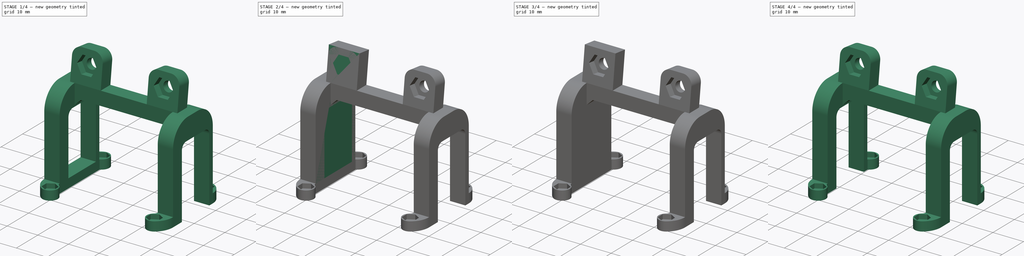
[diagram: build sequence overview — one tinted view per stage of 4, left to right]
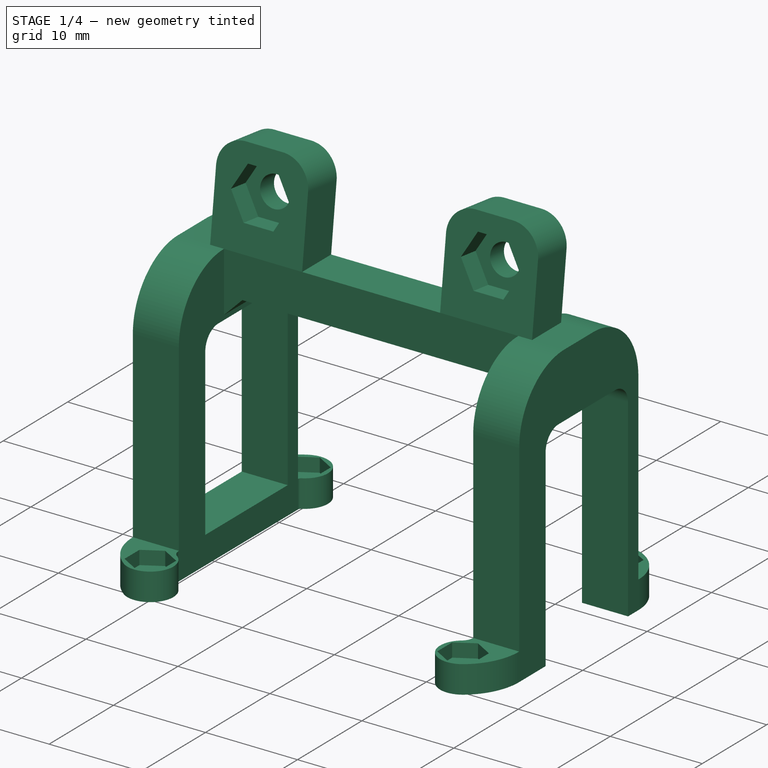
[diagram: stage 1 of 4 — iso view after this stage's code; geometry added in this stage tinted green]
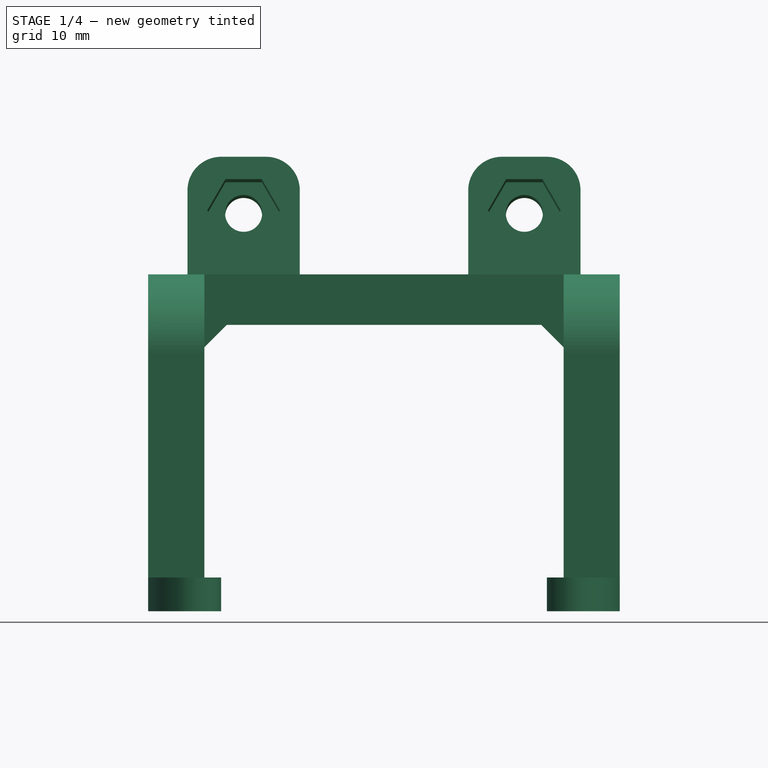
[diagram: stage 1 of 4 — front view after this stage's code; geometry added in this stage tinted green]
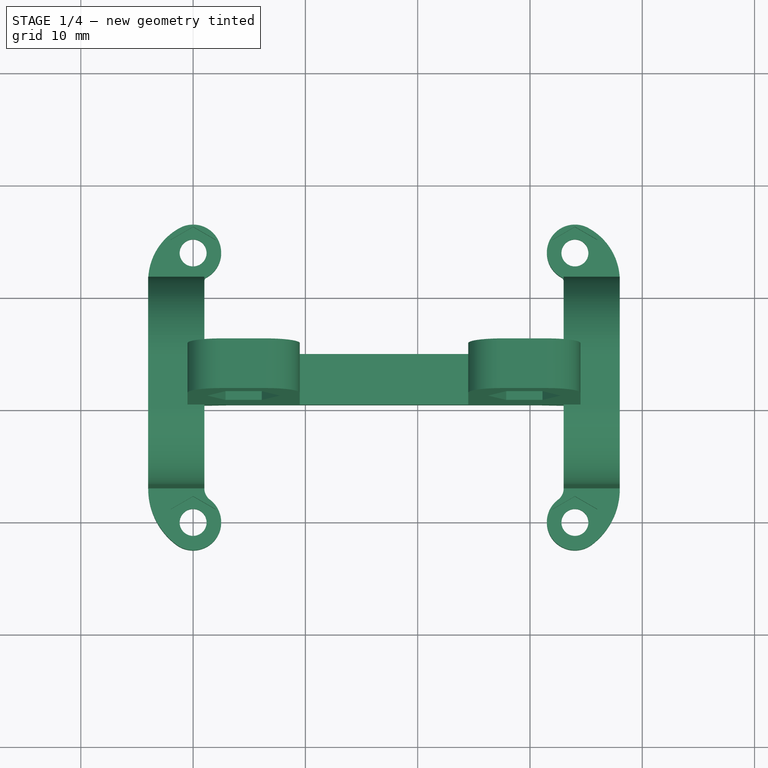
[diagram: stage 1 of 4 — top view after this stage's code; geometry added in this stage tinted green]
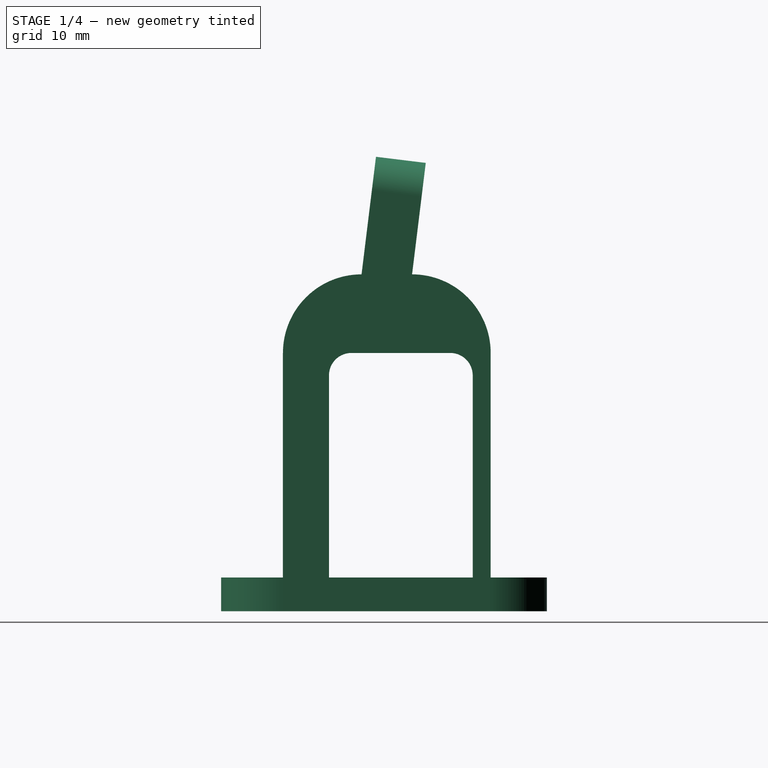
[diagram: stage 1 of 4 — right view after this stage's code; geometry added in this stage tinted green]
FCSTD DOCUMENT  (FreeCAD 0.17R13522 (Git))
Label: Soporte camara APTech
License: All rights reserved
LicenseURL: http://en.wikipedia.org/wiki/All_rights_reserved
objects: Sketcher::SketchObject×8, PartDesign::Pad×4, PartDesign::Pocket×4, PartDesign::Fillet×3, Part::Feature×2, PartDesign::Chamfer×1, Part::Mirroring×1, Part::MultiFuse×1
note: 32 computed .brp shape members not serialized (recipe doc carries the construction recipe); baked Part::Feature solids carry a one-line shape summary decoded from their .brp

FEATURE [Sketcher::SketchObject] Sketch
  MapMode = 5
  sketch-geometry (12):
    g0: Circle CenterX=0 CenterY=0 CenterZ=0 NormalX=0 NormalY=0 NormalZ=1 AngleXU=0 Radius=1.2
    g1: ArcOfCircle CenterX=0 CenterY=24 CenterZ=0 NormalX=0 NormalY=0 NormalZ=1 AngleXU=0 Radius=2.5 StartAngle=5.20235 EndAngle=8.34394
    g2: LineSegment [constr] StartX=0 StartY=24 StartZ=0 EndX=1.17647 EndY=21.7941 EndZ=0
    g3: LineSegment [constr] StartX=0 StartY=24 StartZ=0 EndX=-1.17647 EndY=26.2059 EndZ=0
    g4: ArcOfCircle CenterX=0 CenterY=0 CenterZ=0 NormalX=0 NormalY=0 NormalZ=1 AngleXU=0 Radius=2.5 StartAngle=4.06889 EndAngle=7.21048
    g5: ArcOfCircle CenterX=1.33333 CenterY=21.5 CenterZ=0 NormalX=0 NormalY=0 NormalZ=1 AngleXU=0 Radius=0.333333 StartAngle=2.06075 EndAngle=3.14159
    g6: ArcOfCircle CenterX=1.33333 CenterY=21.5 CenterZ=0 NormalX=0 NormalY=0 NormalZ=1 AngleXU=0 Radius=5.33333 StartAngle=2.06075 EndAngle=3.14159
    g7: ArcOfCircle CenterX=2.24998 CenterY=2.99999 CenterZ=0 NormalX=0 NormalY=0 NormalZ=1 AngleXU=0 Radius=6.24998 StartAngle=3.14159 EndAngle=4.06889
    g8: LineSegment StartX=-4 StartY=3 StartZ=0 EndX=-4 EndY=21.5 EndZ=0
    g9: ArcOfCircle CenterX=2.24998 CenterY=2.99999 CenterZ=0 NormalX=0 NormalY=0 NormalZ=1 AngleXU=0 Radius=1.24998 StartAngle=3.14159 EndAngle=4.06889
    g10: LineSegment StartX=1 StartY=21.5 StartZ=0 EndX=1 EndY=2.99999 EndZ=0
    g11: Circle CenterX=0 CenterY=24 CenterZ=0 NormalX=0 NormalY=0 NormalZ=1 AngleXU=0 Radius=1.2
  constraints (35):
    c: Coincident(g0,g-1)
    c: Radius(g0) = 1.2
    c: Coincident(g2,g1)
    c: Coincident(g3,g1)
    c: Coincident(g4,g-1)
    c: Equal(g1,g4)
    c: Parallel(g3,g2)
    c: Coincident(g5,g1)
    c: Coincident(g6,g1)
    c: Coincident(g7,g4)
    c: Tangent(g7,g4)
    c: Tangent(g5,g1)
    c: Distance(g2) = 2.5
    c: Coincident(g6,g5)
    c: Coincident(g8,g7)
    c: Vertical(g8)
    c: Tangent(g7,g8)
    c: PointOnObject(g1,g-2)
    c: Coincident(g2,g1)
    c: Coincident(g3,g1)
    c: Coincident(g9,g7)
    c: Coincident(g9,g4)
    c: Tangent(g9,g4)
    c: Coincident(g10,g9)
    c: Vertical(g10)
    c: Tangent(g9,g10)
    c: DistanceY(g-1,g1) = 24
    c: Coincident(g11,g1)
    c: Equal(g11,g0)
    c: DistanceX(g-1,g10) = 1
    c: Coincident(g8,g6)
    c: Coincident(g5,g10)
    c: Tangent(g5,g10)
    c: DistanceY(g6,g1) = 2.5
    c: DistanceY(g-1,g7) = 3
FEATURE [PartDesign::Pad] Pad
  Length = 3
  Length2 = 100
  Profile = -> Sketch
  Type = 0
FEATURE [Sketcher::SketchObject] Sketch001
  ExternalGeometry = -> [Pad]
  MapMode = 5
  Placement = pos=(0,0,3) rot=(0,0,1;0rad)
  Support = -> [Pad]
  sketch-geometry (14):
    g0: LineSegment StartX=0 StartY=2.3094 StartZ=0 EndX=-2 EndY=1.1547 EndZ=0
    g1: LineSegment StartX=-2 StartY=1.1547 StartZ=0 EndX=-2 EndY=-1.1547 EndZ=0
    g2: LineSegment StartX=-2 StartY=-1.1547 StartZ=0 EndX=0 EndY=-2.3094 EndZ=0
    g3: LineSegment StartX=0 StartY=-2.3094 StartZ=0 EndX=2 EndY=-1.1547 EndZ=0
    g4: LineSegment StartX=2 StartY=-1.1547 StartZ=0 EndX=2 EndY=1.1547 EndZ=0
    g5: LineSegment StartX=2 StartY=1.1547 StartZ=0 EndX=0 EndY=2.3094 EndZ=0
    g6: Circle [constr] CenterX=0 CenterY=0 CenterZ=0 NormalX=0 NormalY=0 NormalZ=1 AngleXU=0 Radius=2.3094
    g7: LineSegment StartX=0 StartY=21.6906 StartZ=0 EndX=2 EndY=22.8453 EndZ=0
    g8: LineSegment StartX=2 StartY=22.8453 StartZ=0 EndX=2 EndY=25.1547 EndZ=0
    g9: LineSegment StartX=2 StartY=25.1547 StartZ=0 EndX=1e-12 EndY=26.3094 EndZ=0
    g10: LineSegment StartX=1e-12 StartY=26.3094 StartZ=0 EndX=-2 EndY=25.1547 EndZ=0
    g11: LineSegment StartX=-2 StartY=25.1547 StartZ=0 EndX=-2 EndY=22.8453 EndZ=0
    g12: LineSegment StartX=-2 StartY=22.8453 StartZ=0 EndX=0 EndY=21.6906 EndZ=0
    g13: Circle [constr] CenterX=0 CenterY=24 CenterZ=0 NormalX=0 NormalY=0 NormalZ=1 AngleXU=0 Radius=2.3094
  constraints (32):
    c: Coincident(g0,g1)
    c: Coincident(g1,g2)
    c: Coincident(g2,g3)
    c: Coincident(g3,g4)
    c: Coincident(g4,g5)
    c: Coincident(g5,g0)
    c: Equal(g0, g1-g5) x5
    c: PointOnObject(g0,g6)
    c: PointOnObject(g1,g6)
    c: PointOnObject(g2,g6)
    c: PointOnObject(g3,g6)
    c: PointOnObject(g4,g6)
    c: PointOnObject(g5,g6)
    c: Coincident(g6,g-1)
    c: Coincident(g7,g8)
    c: Coincident(g8,g9)
    c: Coincident(g9,g10)
    c: Coincident(g10,g11)
    c: Coincident(g11,g12)
    c: Coincident(g12,g7)
    c: Equal(g7, g8-g12) x5
    c: PointOnObject(g7,g13)
    c: PointOnObject(g8,g13)
    c: PointOnObject(g9,g13)
    c: PointOnObject(g10,g13)
    c: PointOnObject(g11,g13)
    c: PointOnObject(g12,g13)
    c: Coincident(g13,g-3)
    c: PointOnObject(g12,g-2)
    c: PointOnObject(g0,g-2)
    c: Equal(g4,g8)
    c: Distance(g8,g7) = 4
FEATURE [PartDesign::Pocket] Pocket
  Length = 1.5
  Length2 = 100
  Profile = -> Sketch001
  Type = 0
FEATURE [Part::Feature] Fillet002001  label="Semiarco"
  shape: bbox 21 x 29 x 40.47 mm, 59 faces (baked)
FEATURE [Part::Mirroring] Part__Mirroring  label="Semiarco (Mirror #1)"
  Base = (0,0,0)
  Normal = (1,0,0)
  Placement = pos=(34,0,0) rot=(0,0,1;0rad)
  Source = -> Fillet002001
FEATURE [Part::MultiFuse] Fusion
  Shapes = -> [Part__Mirroring,Fillet002001]
FEATURE [Part::Feature] Fusion001  label="Arco"
  shape: bbox 42 x 29 x 40.47 mm, 112 faces (baked)
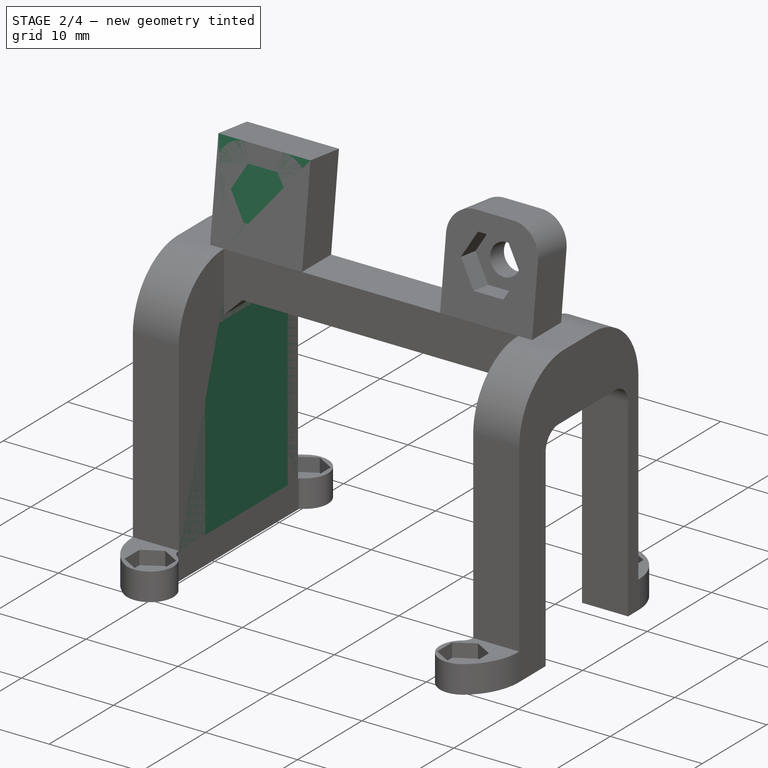
[diagram: stage 2 of 4 — iso view after this stage's code; geometry added in this stage tinted green]
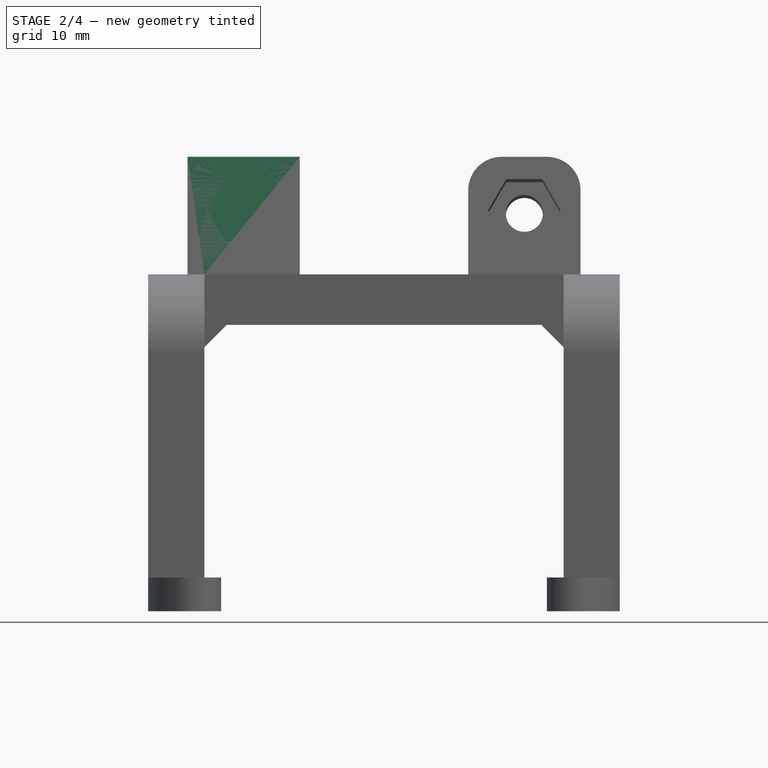
[diagram: stage 2 of 4 — front view after this stage's code; geometry added in this stage tinted green]
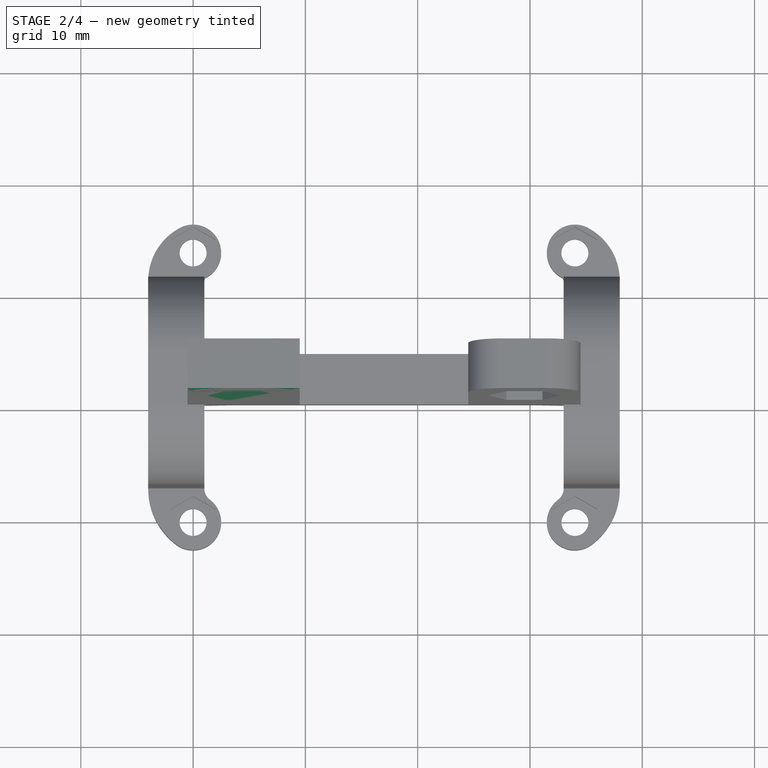
[diagram: stage 2 of 4 — top view after this stage's code; geometry added in this stage tinted green]
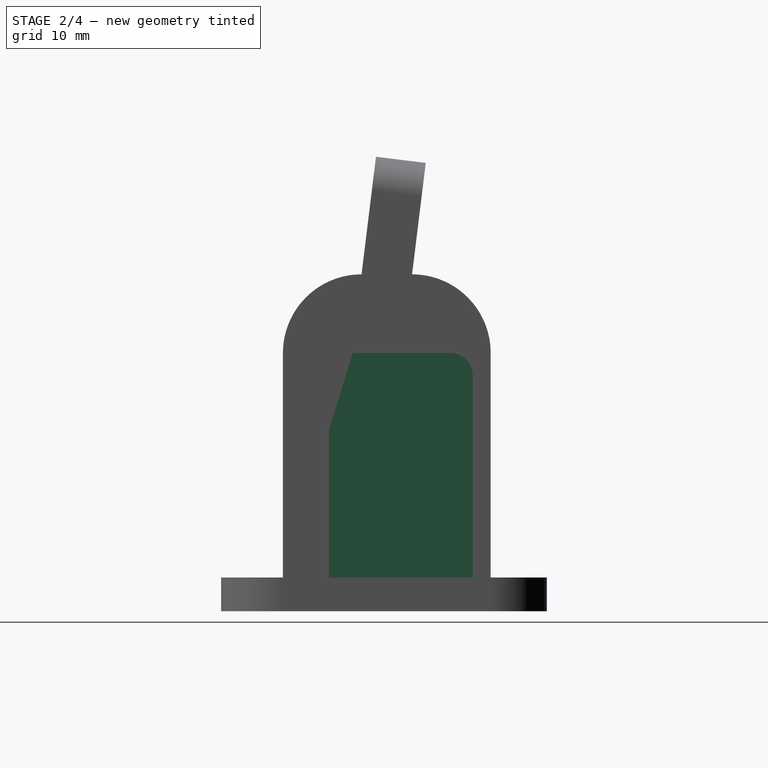
[diagram: stage 2 of 4 — right view after this stage's code; geometry added in this stage tinted green]
FEATURE [Sketcher::SketchObject] Sketch002
  ExternalGeometry = -> [Pocket]
  MapMode = 5
  Placement = pos=(0,0,3) rot=(0,0,1;0rad)
  Support = -> [Pocket]
  sketch-geometry (4):
    g0: LineSegment StartX=-4 StartY=21.5 StartZ=0 EndX=1 EndY=21.5 EndZ=0
    g1: LineSegment StartX=1 StartY=21.5 StartZ=0 EndX=1 EndY=2.99999 EndZ=0
    g2: LineSegment StartX=1 StartY=2.99999 StartZ=0 EndX=-4 EndY=3 EndZ=0
    g3: LineSegment StartX=-4 StartY=3 StartZ=0 EndX=-4 EndY=21.5 EndZ=0
  constraints (9):
    c: Coincident(g0,g-3)
    c: Coincident(g0,g-4)
    c: Coincident(g1,g-6)
    c: Vertical(g1)
    c: Coincident(g2,g1)
    c: Coincident(g2,g-5)
    c: Coincident(g3,g2)
    c: Coincident(g3,g0)
    c: Coincident(g1,g0)
FEATURE [PartDesign::Pad] Pad001
  Length = 27
  Length2 = 100
  Profile = -> Sketch002
  Type = 0
FEATURE [PartDesign::Fillet] Fillet
  Base = -> Pad001 [Edge70,Edge39]
  Radius = 7
FEATURE [Sketcher::SketchObject] Sketch003
  ExternalGeometry = -> [Fillet]
  MapMode = 5
  Placement = pos=(1,0,0) rot=(0.57735,0.57735,0.57735;2.0944rad)
  Support = -> [Fillet]
  sketch-geometry (6):
    g0: LineSegment StartX=9.99999 StartY=30 StartZ=0 EndX=9.99999 EndY=25.5 EndZ=0
    g1: LineSegment StartX=9.99999 StartY=25.5 StartZ=0 EndX=14.5 EndY=25.5 EndZ=0
    g2: LineSegment StartX=14.5 StartY=25.5 StartZ=0 EndX=14.5 EndY=30 EndZ=0
    g3: LineSegment StartX=9.99999 StartY=30 StartZ=0 EndX=11.2855 EndY=40.4698 EndZ=0
    g4: LineSegment StartX=11.2855 StartY=40.4698 StartZ=0 EndX=15.7187 EndY=39.9255 EndZ=0
    g5: LineSegment StartX=15.7187 StartY=39.9255 StartZ=0 EndX=14.5 EndY=30 EndZ=0
  constraints (16):
    c: Coincident(g0,g-4)
    c: Vertical(g0)
    c: Coincident(g1,g0)
    c: Horizontal(g1)
    c: Coincident(g2,g1)
    c: Vertical(g2)
    c: Coincident(g2,g-3)
    c: Equal(g1,g0)
    c: Coincident(g3,g0)
    c: Coincident(g4,g3)
    c: Coincident(g5,g4)
    c: Coincident(g5,g2)
    c: Parallel(g5,g3)
    c: Perpendicular(g3,g4)
    c: Distance(g5) = 10
    c: Angle(g-5,g3) = 1.44862
FEATURE [PartDesign::Pad] Pad002
  Length = 8.5
  Length2 = 1.5
  Profile = -> Sketch003
  Type = 4
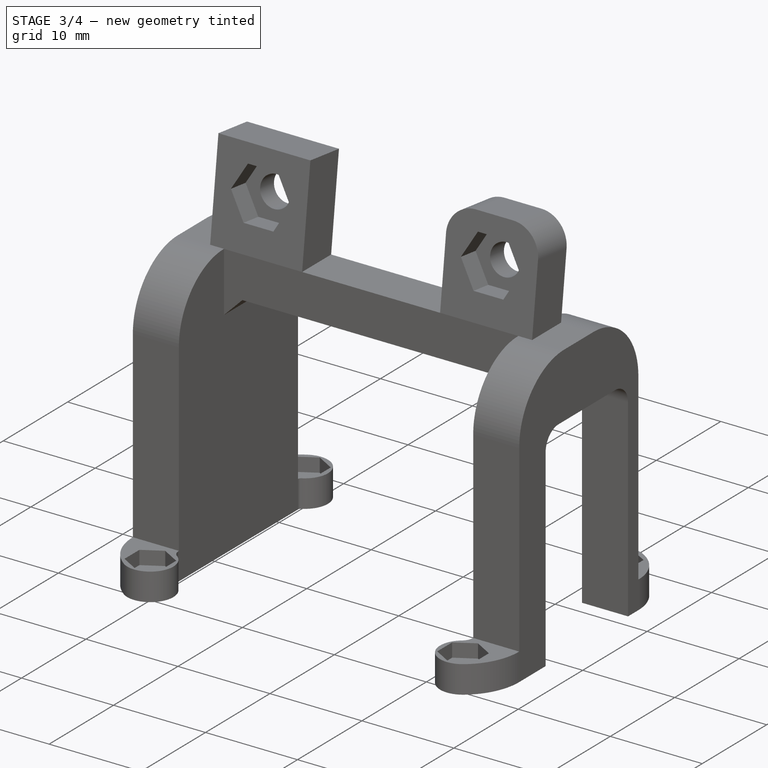
[diagram: stage 3 of 4 — iso view after this stage's code; geometry added in this stage tinted green]
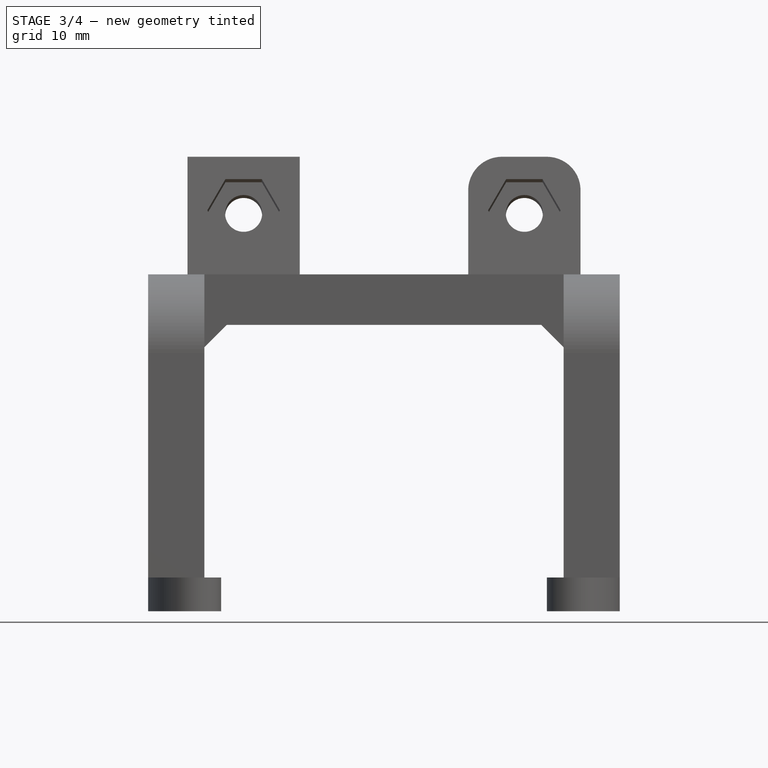
[diagram: stage 3 of 4 — front view after this stage's code; geometry added in this stage tinted green]
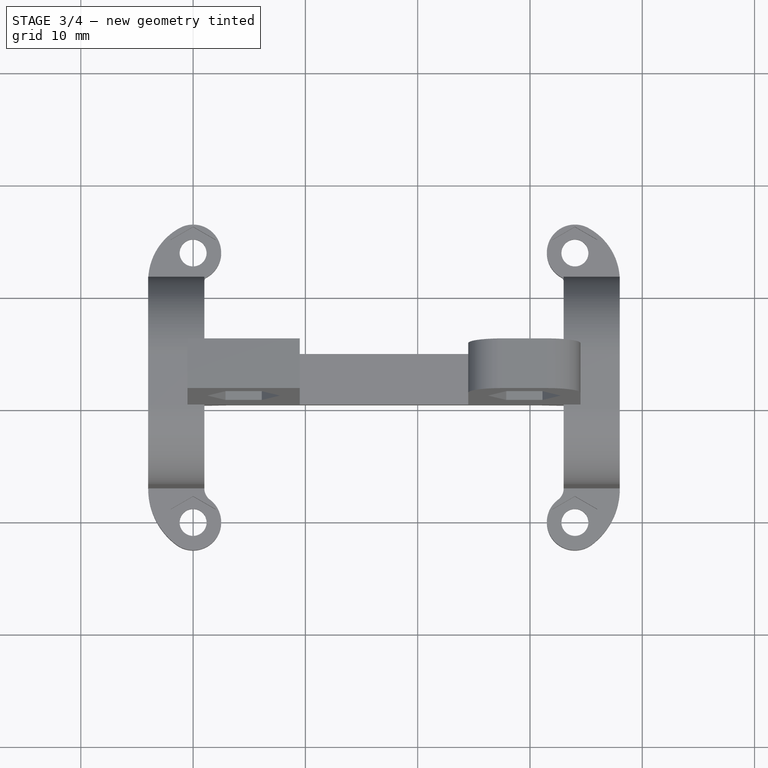
[diagram: stage 3 of 4 — top view after this stage's code; geometry added in this stage tinted green]
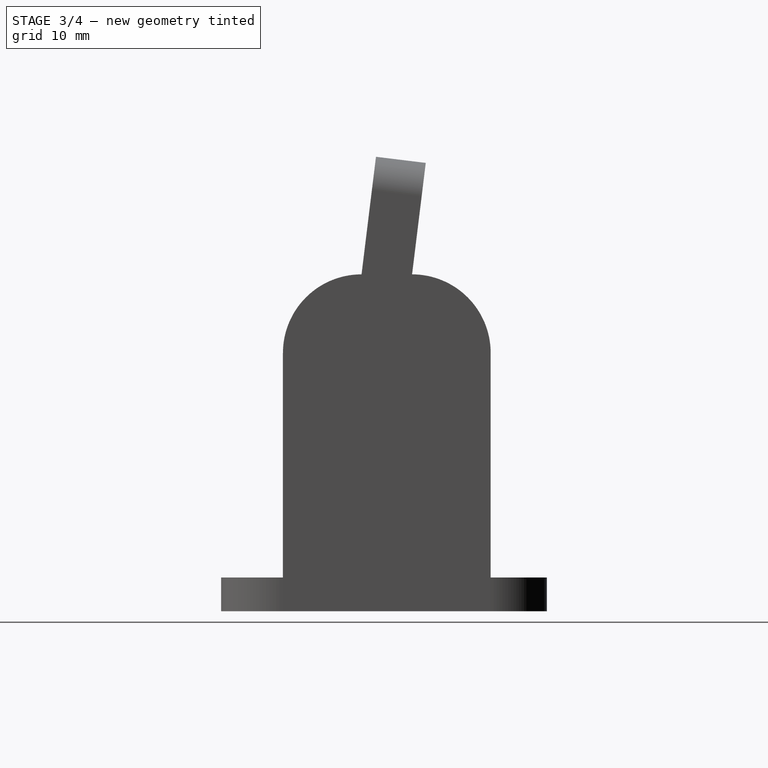
[diagram: stage 3 of 4 — right view after this stage's code; geometry added in this stage tinted green]
FEATURE [Sketcher::SketchObject] Sketch004
  ExternalGeometry = -> [Pad002]
  MapMode = 5
  Placement = pos=(9.5,0,0) rot=(0.57735,0.57735,0.57735;2.0944rad)
  Support = -> [Pad002]
  sketch-geometry (4):
    g0: LineSegment StartX=9.99999 StartY=30 StartZ=0 EndX=14.5 EndY=30 EndZ=0
    g1: LineSegment StartX=14.5 StartY=30 StartZ=0 EndX=14.5 EndY=25.5 EndZ=0
    g2: LineSegment StartX=14.5 StartY=25.5 StartZ=0 EndX=9.99999 EndY=25.5 EndZ=0
    g3: LineSegment StartX=9.99999 StartY=25.5 StartZ=0 EndX=9.99999 EndY=30 EndZ=0
  constraints (9):
    c: Coincident(g0,g-3)
    c: Coincident(g0,g-4)
    c: Coincident(g1,g0)
    c: Coincident(g1,g-5)
    c: Coincident(g2,g-6)
    c: Horizontal(g2)
    c: Coincident(g3,g2)
    c: Coincident(g3,g0)
    c: Coincident(g2,g1)
FEATURE [PartDesign::Pad] Pad003
  Length = 7.5
  Length2 = 100
  Profile = -> Sketch004
  Type = 0
FEATURE [Sketcher::SketchObject] Sketch005
  ExternalGeometry = -> [Pad003]
  MapMode = 5
  Placement = pos=(0,10.6558,-1.30837) rot=(0,0.748956,0.66262;3.14159rad)
  Support = -> [Pad003]
  sketch-geometry (3):
    g0: Circle CenterX=-4.5 CenterY=36.7435 CenterZ=0 NormalX=0 NormalY=0 NormalZ=1 AngleXU=0 Radius=1.65
    g1: LineSegment [constr] StartX=-4.5 StartY=36.7435 StartZ=0 EndX=-9.5 EndY=31.5435 EndZ=0
    g2: LineSegment [constr] StartX=-4.5 StartY=36.7435 StartZ=0 EndX=0.5 EndY=31.5435 EndZ=0
  constraints (7):
    c: Coincident(g1,g0)
    c: Coincident(g1,g-3)
    c: Coincident(g2,g0)
    c: Coincident(g2,g-4)
    c: Equal(g2,g1)
    c: Radius(g0) = 1.65
    c: DistanceY(g1,g0) = 5.2
FEATURE [PartDesign::Pocket] Pocket001
  Length = 0
  Length2 = 100
  Profile = -> Sketch005
  Type = 1
FEATURE [Sketcher::SketchObject] Sketch006
  ExternalGeometry = -> [Pocket001]
  MapMode = 5
  Placement = pos=(0,6.22264,-0.764044) rot=(1,0,0;1.44862rad)
  Support = -> [Pocket001]
  sketch-geometry (7):
    g0: LineSegment StartX=6.11658 StartY=39.5435 StartZ=0 EndX=2.88342 EndY=39.5435 EndZ=0
    g1: LineSegment StartX=2.88342 StartY=39.5435 StartZ=0 EndX=1.26684 EndY=36.7435 EndZ=0
    g2: LineSegment StartX=1.26684 StartY=36.7435 StartZ=0 EndX=2.88342 EndY=33.9435 EndZ=0
    g3: LineSegment StartX=2.88342 StartY=33.9435 StartZ=0 EndX=6.11658 EndY=33.9435 EndZ=0
    g4: LineSegment StartX=6.11658 StartY=33.9435 StartZ=0 EndX=7.73316 EndY=36.7435 EndZ=0
    g5: LineSegment StartX=7.73316 StartY=36.7435 StartZ=0 EndX=6.11658 EndY=39.5435 EndZ=0
    g6: Circle [constr] CenterX=4.5 CenterY=36.7435 CenterZ=0 NormalX=0 NormalY=0 NormalZ=1 AngleXU=0 Radius=3.23316
  constraints (16):
    c: Coincident(g0,g1)
    c: Coincident(g1,g2)
    c: Coincident(g2,g3)
    c: Coincident(g3,g4)
    c: Coincident(g4,g5)
    c: Coincident(g5,g0)
    c: Equal(g0, g1-g5) x5
    c: PointOnObject(g0,g6)
    c: PointOnObject(g1,g6)
    c: PointOnObject(g2,g6)
    c: PointOnObject(g3,g6)
    c: PointOnObject(g4,g6)
    c: PointOnObject(g5,g6)
    c: Coincident(g6,g-3)
    c: Horizontal(g0)
    c: DistanceY(g3,g0) = 5.6
FEATURE [PartDesign::Pocket] Pocket002
  Length = 2.3
  Length2 = 100
  Profile = -> Sketch006
  Type = 0
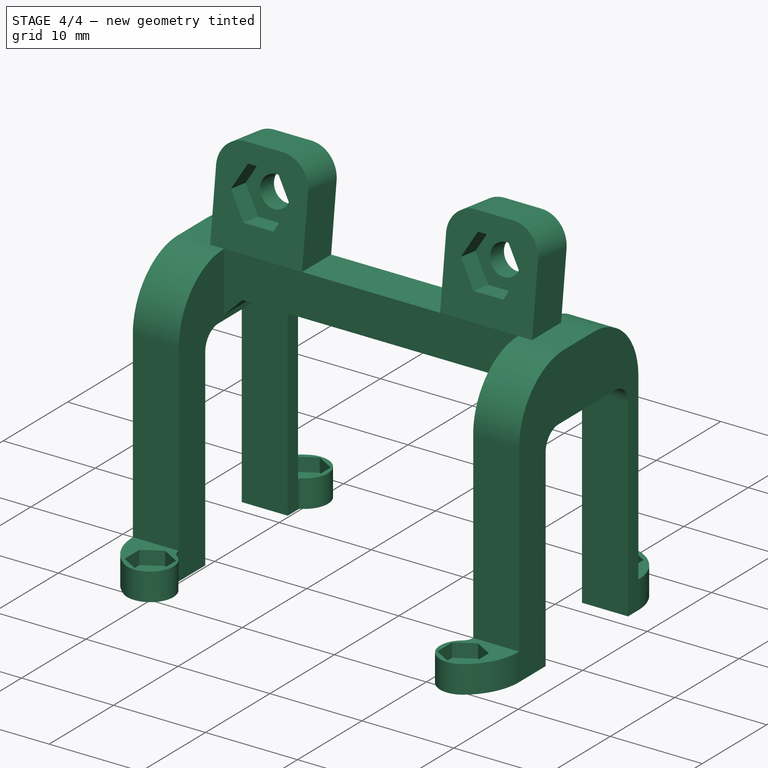
[diagram: stage 4 of 4 — iso view after this stage's code; geometry added in this stage tinted green]
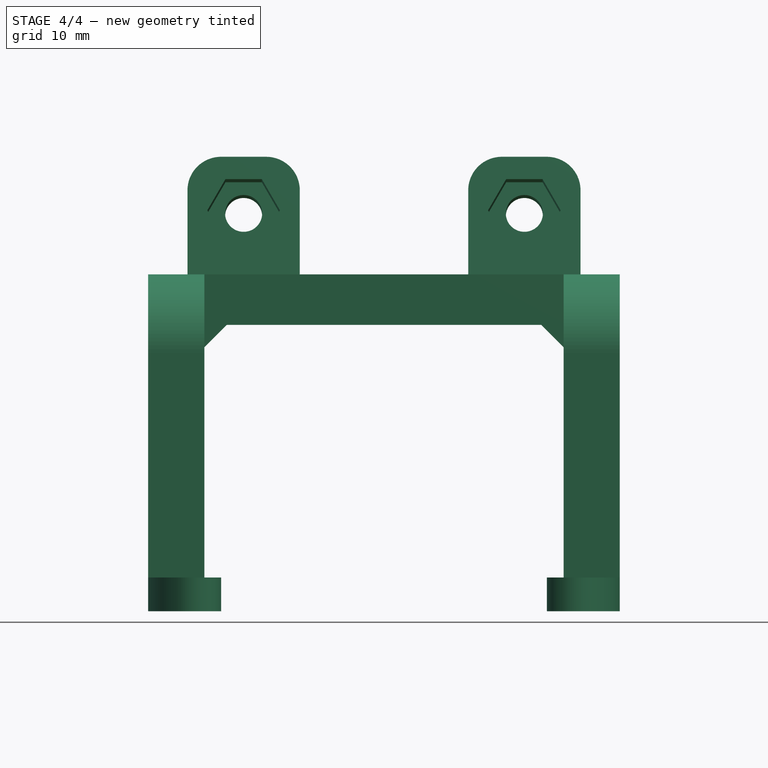
[diagram: stage 4 of 4 — front view after this stage's code; geometry added in this stage tinted green]
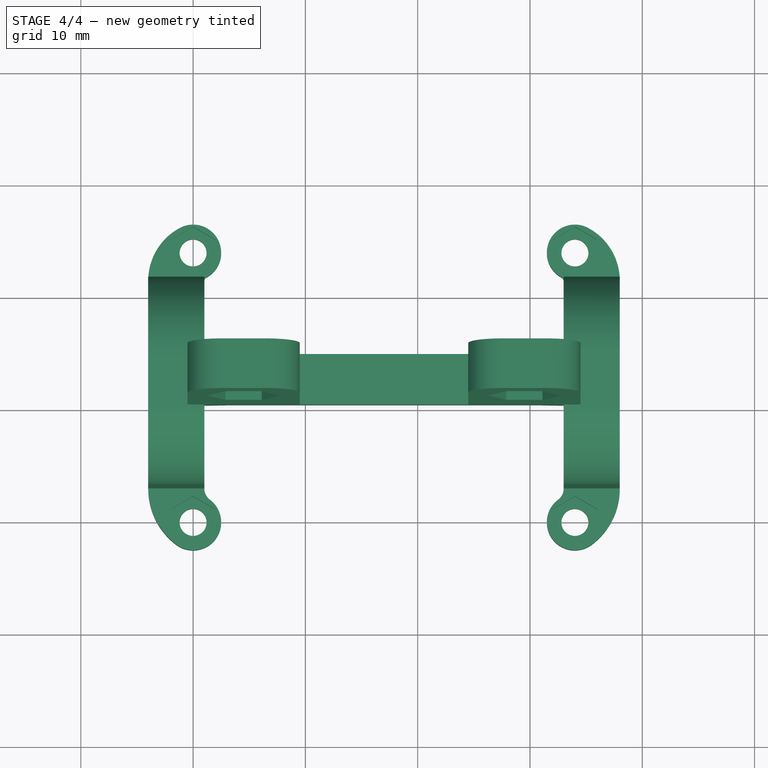
[diagram: stage 4 of 4 — top view after this stage's code; geometry added in this stage tinted green]
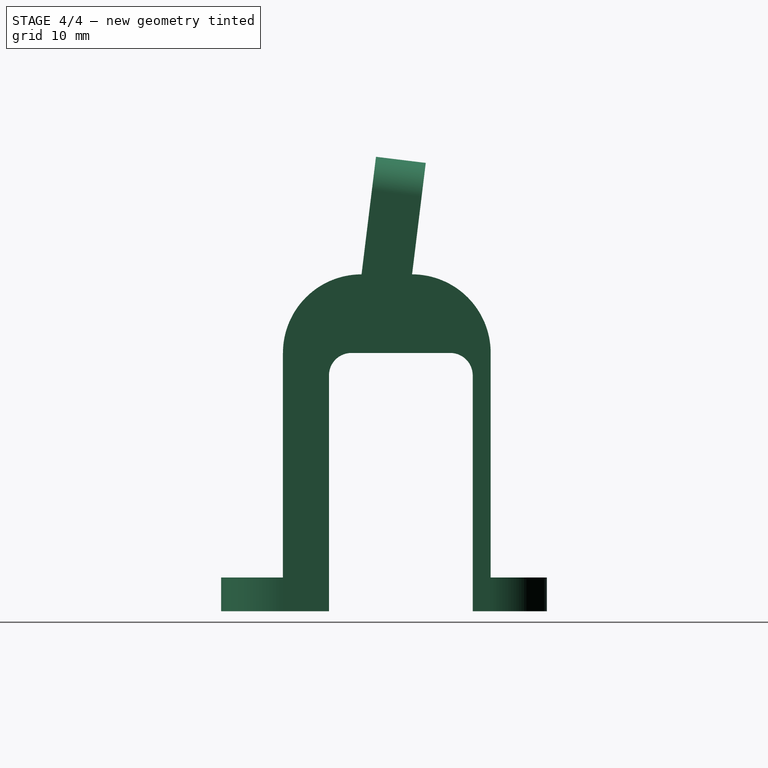
[diagram: stage 4 of 4 — right view after this stage's code; geometry added in this stage tinted green]
FEATURE [PartDesign::Fillet] Fillet001
  Base = -> Pocket002 [Edge3,Edge4]
  Radius = 3
FEATURE [Sketcher::SketchObject] Sketch007
  ExternalGeometry = -> [Fillet001]
  MapMode = 5
  Placement = pos=(1,0,0) rot=(0.57735,0.57735,0.57735;2.0944rad)
  Support = -> [Fillet001]
  sketch-geometry (4):
    g0: LineSegment StartX=7.1 StartY=0 StartZ=0 EndX=7.1 EndY=23 EndZ=0
    g1: LineSegment StartX=7.1 StartY=23 StartZ=0 EndX=19.9 EndY=23 EndZ=0
    g2: LineSegment StartX=19.9 StartY=23 StartZ=0 EndX=19.9 EndY=0 EndZ=0
    g3: LineSegment StartX=19.9 StartY=0 StartZ=0 EndX=7.1 EndY=0 EndZ=0
  constraints (12):
    c: PointOnObject(g0,g-3)
    c: Vertical(g0)
    c: Coincident(g1,g0)
    c: Horizontal(g1)
    c: Coincident(g2,g1)
    c: PointOnObject(g2,g-3)
    c: Vertical(g2)
    c: Coincident(g3,g2)
    c: Coincident(g3,g0)
    c: DistanceX(g-1,g0) = 7.1
    c: DistanceX(g1,g1) = 12.8
    c: DistanceY(g0,g0) = 23
FEATURE [PartDesign::Pocket] Pocket003
  Length = 5
  Length2 = 100
  Profile = -> Sketch007
  Type = 1
FEATURE [PartDesign::Chamfer] Chamfer
  Base = -> Pocket003 [Edge73]
  Size = 2
FEATURE [PartDesign::Fillet] Fillet002
  Base = -> Chamfer [Edge62,Edge66]
  Radius = 2
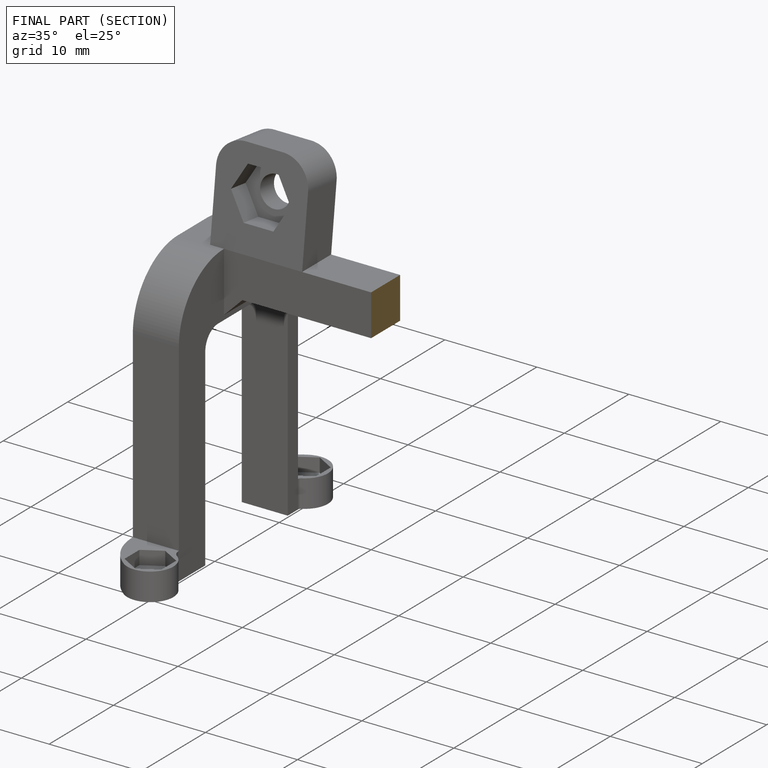
[diagram: finished part — half-section view (interior)]
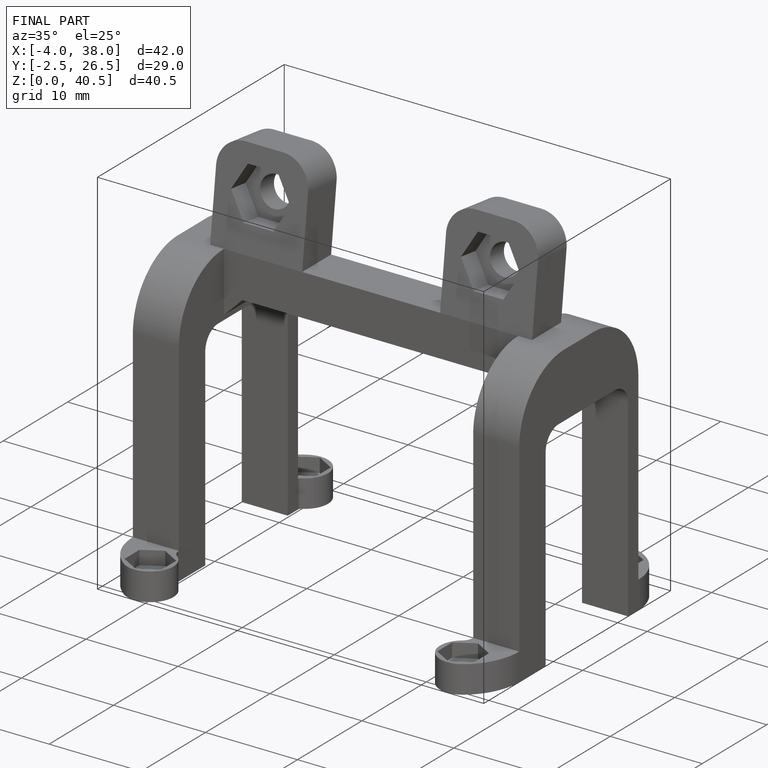
[diagram: finished part — iso view with bounding-box wireframe]
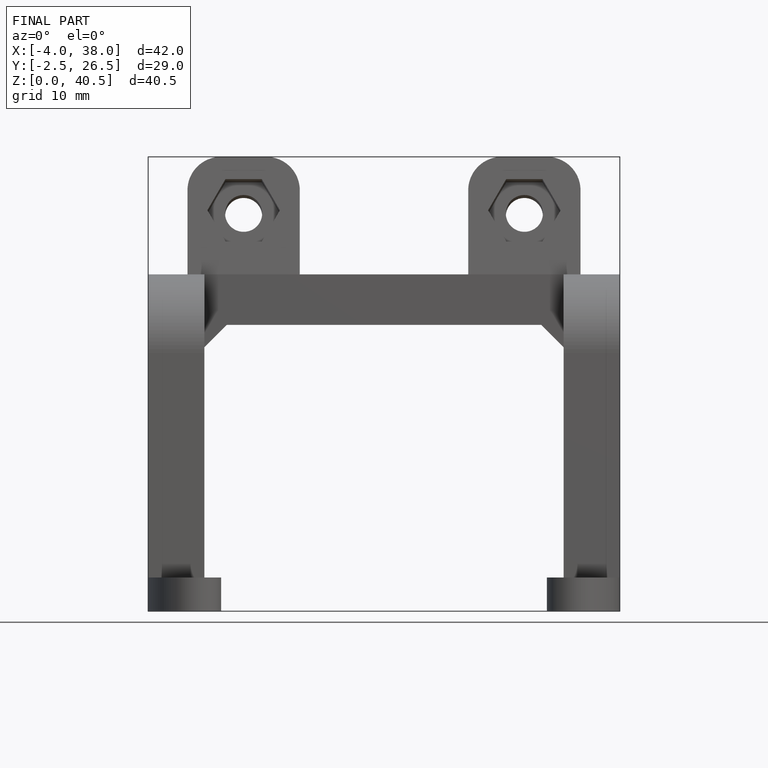
[diagram: finished part — front view with bounding-box wireframe]
